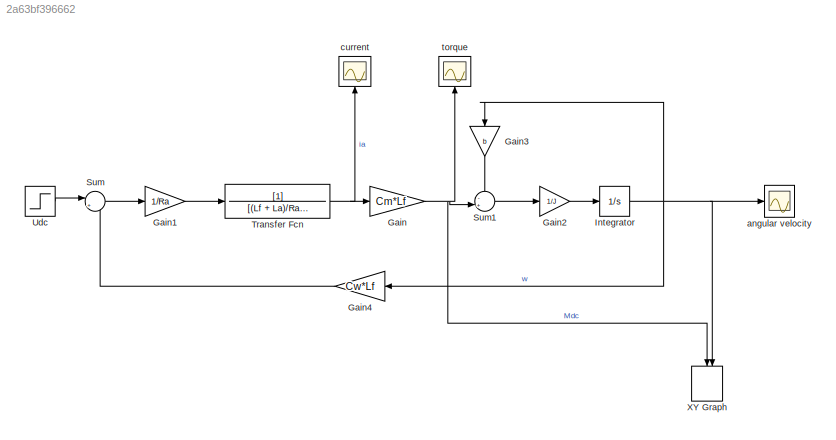
MODEL slx_2a63bf396662
KIND model
CONFIG AbsTol = auto
CONFIG EnableMultiTasking = off
CONFIG FixedStep = auto
CONFIG MaxStep = auto
CONFIG MinStep = auto
CONFIG RelTol = 1e-3
CONFIG SampleTimeConstraint = Unconstrained
CONFIG SolverName = VariableStepAuto
CONFIG StartTime = 0.0
CONFIG StopTime = 1
BLOCK [Gain] Gain
  Gain = Cm*Lf
BLOCK [Gain] Gain1
  Gain = 1/Ra
BLOCK [Gain] Gain2
  Gain = 1/J
BLOCK [Gain] Gain3
  Gain = b
  NameLocation = left
BLOCK [Gain] Gain4
  Gain = Cw*Lf
  NameLocation = top
BLOCK [Integrator] Integrator
BLOCK [Sum] Sum
  Inputs = |+-
BLOCK [Sum] Sum1
  Inputs = -+|
BLOCK [TransferFcn] Transfer Fcn
  Denominator = [(Lf + La)/Ra 1]
BLOCK [Step] Udc
  After = 5
  SampleTime = 0
  Time = 0
BLOCK [Record] XY Graph
  CompatibilityTag = XY
  FileSettingsInternal = {"entries":[{"content":{"excelSettings":{"content":{},"type":"Streamout.ExcelSettings"}},"type":"Streamout.FileSettingStorage","uuid":"528767e1-7320-42bb-9321-d407354188c7"}],"packageUris":["http://schema.mathworks.com/mf0/streamout_blocks/R2020a"],"version":"1.0"}
  Layout = [1 1]
  NameLocation = left
  SignalsInternal = {"entries":[{"content":{"signals":[{"content":{"blockPath":["SeriesWoundDCMotor/XY Graph"],"dimensions":[1],"domain":"SeriesWoundDCMotor/XY Graph","lineColor":"#a2142f","plots":[1],"port":1,"sid":[""],"signalID":77,"signalName":"Mdc"},"type":"RecordBlkView.Signal","uuid":"6c2de2cb-2da1-48f2-8948-2fb98b1d259b"},{"content":{"blockPath":["SeriesWoundDCMotor/XY Graph"],"dimensions":[1],"domain":"Serie...<+363ch>
  VisualizationBindings = {"xyplotplugin":{"info":[{"series":[{"bindingParametersList":[{"parameter":"X-Axis","signalID":81,"signalName":"w"},{"parameter":"Y-Axis","signalID":77,"signalName":"Mdc"}],"seriesID":37869}],"subplotID":1}]}}
BLOCK [Scope] angular velocity
  Floating = off
  NumInputPorts = 1
  ScopeSpecificationString = Simulink.scopes.TimeScopeBlockCfg('CurrentConfiguration', extmgr.ConfigurationSet(extmgr.Configuration('Core','General UI',true,'FigureColor',[1 1 1]),extmgr.Configuration('Core','Source UI',true),extmgr.Configuration('Sources','WiredSimulink',true),extmgr.Configuration('Visuals','Time Domain',true,'SerializedDisplays',{struct('MinYLimReal','-30.52541','MaxYLimReal','274.7287','YLabelReal','','Min...<+1480ch>
BLOCK [Scope] current
  Floating = off
  NameLocation = right
  NumInputPorts = 1
  ScopeSpecificationString = Simulink.scopes.TimeScopeBlockCfg('CurrentConfiguration', extmgr.ConfigurationSet(extmgr.Configuration('Core','General UI',true,'FigureColor',[1 1 1]),extmgr.Configuration('Core','Source UI',true),extmgr.Configuration('Sources','WiredSimulink',true,'DataLoggingVariableName','ScopeData1'),extmgr.Configuration('Visuals','Time Domain',true,'SerializedDisplays',{struct('MinYLimReal','-0.14703','MaxYLi...<+1513ch>
BLOCK [Scope] torque
  Floating = off
  NameLocation = right
  NumInputPorts = 1
  ScopeSpecificationString = Simulink.scopes.TimeScopeBlockCfg('CurrentConfiguration', extmgr.ConfigurationSet(extmgr.Configuration('Core','General UI',true,'FigureColor',[1 1 1]),extmgr.Configuration('Core','Source UI',true),extmgr.Configuration('Sources','WiredSimulink',true,'DataLoggingVariableName','ScopeData2'),extmgr.Configuration('Visuals','Time Domain',true,'SerializedDisplays',{struct('MinYLimReal','-0.00125','MaxYLi...<+1555ch>
LINE Gain1:1 -> Transfer Fcn:1
LINE Gain2:1 -> Integrator:1
LINE Gain3:1 -> Sum1:1
LINE Gain4:1 -> Sum:2
NET Gain:1 -> Sum1:2, XY Graph:1, torque:1
NET Integrator:1 -> Gain3:1, Gain4:1, XY Graph:2, angular velocity:1
LINE Sum1:1 -> Gain2:1
LINE Sum:1 -> Gain1:1
NET Transfer Fcn:1 -> Gain:1, current:1
LINE Udc:1 -> Sum:1
note: NET lines group one-source signal fan-out (src -> all destinations, sorted); 1:1 wires keep LINE
